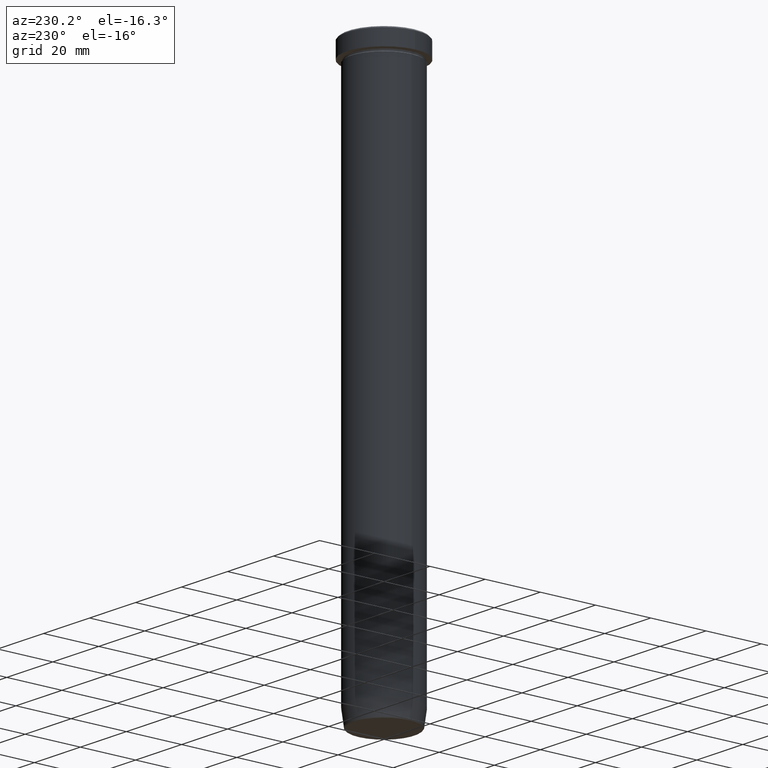
[diagram: clean part render]
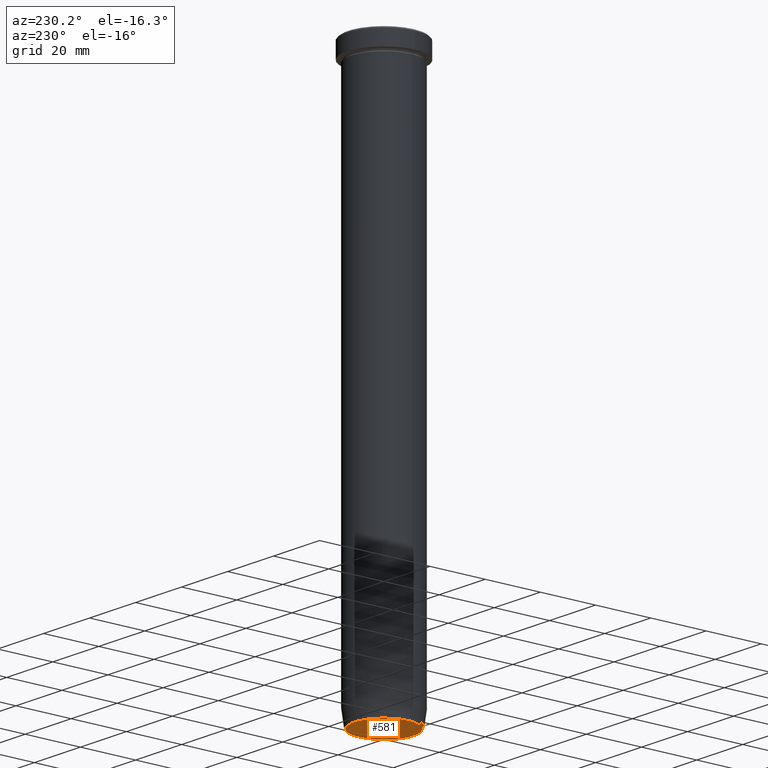
[diagram: same view with one face highlighted and labeled with its STEP entity id]
A machine part, auxiliary view. The second image highlights one B-rep face of the part: STEP entity #581.
In plain terms, the highlighted planar face has unit normal (0, -0, 1).
Its self-contained STEP definition (entity closure, byte-faithful):
#79 = CIRCLE ( 'NONE', #423, 10.72211162287753439 ) ;
#80 = AXIS2_PLACEMENT_3D ( 'NONE', #127, #357, #81 ) ;
#81 = DIRECTION ( 'NONE',  ( 1.000000000000000000, 0.000000000000000000, 0.000000000000000000 ) ) ;
#85 = CARTESIAN_POINT ( 'NONE',  ( 0.000000000000000000, 0.000000000000000000, -199.9999999999999716 ) ) ;
#86 = EDGE_LOOP ( 'NONE', ( #437, #390 ) ) ;
#110 = DIRECTION ( 'NONE',  ( 1.000000000000000000, 0.000000000000000000, 0.000000000000000000 ) ) ;
#127 = CARTESIAN_POINT ( 'NONE',  ( 0.000000000000000000, 1.469576158976823671E-14, -199.9999999999999716 ) ) ;
#129 = CARTESIAN_POINT ( 'NONE',  ( -10.72211162287753439, 1.343398183422815235E-15, -199.9999999999999716 ) ) ;
#132 = FACE_OUTER_BOUND ( 'NONE', #86, .T. ) ;
#156 = AXIS2_PLACEMENT_3D ( 'NONE', #85, #459, #411 ) ;
#166 = CARTESIAN_POINT ( 'NONE',  ( 10.72211162287753439, 0.000000000000000000, -199.9999999999999716 ) ) ;
#180 = EDGE_CURVE ( 'NONE', #232, #422, #404, .T. ) ;
#232 = VERTEX_POINT ( 'NONE', #129 ) ;
#271 = EDGE_CURVE ( 'NONE', #422, #232, #79, .T. ) ;
#292 = DIRECTION ( 'NONE',  ( 0.000000000000000000, 0.000000000000000000, -1.000000000000000000 ) ) ;
#336 = CARTESIAN_POINT ( 'NONE',  ( 0.000000000000000000, 0.000000000000000000, -199.9999999999999716 ) ) ;
#357 = DIRECTION ( 'NONE',  ( 0.000000000000000000, -0.000000000000000000, 1.000000000000000000 ) ) ;
#390 = ORIENTED_EDGE ( 'NONE', *, *, #180, .T. ) ;
#404 = CIRCLE ( 'NONE', #156, 10.72211162287753439 ) ;
#411 = DIRECTION ( 'NONE',  ( 1.000000000000000000, 0.000000000000000000, 0.000000000000000000 ) ) ;
#422 = VERTEX_POINT ( 'NONE', #166 ) ;
#423 = AXIS2_PLACEMENT_3D ( 'NONE', #336, #292, #110 ) ;
#437 = ORIENTED_EDGE ( 'NONE', *, *, #271, .T. ) ;
#459 = DIRECTION ( 'NONE',  ( 0.000000000000000000, 0.000000000000000000, -1.000000000000000000 ) ) ;
#539 = PLANE ( 'NONE',  #80 ) ;
#581 = ADVANCED_FACE ( 'NONE', ( #132 ), #539, .F. ) ;